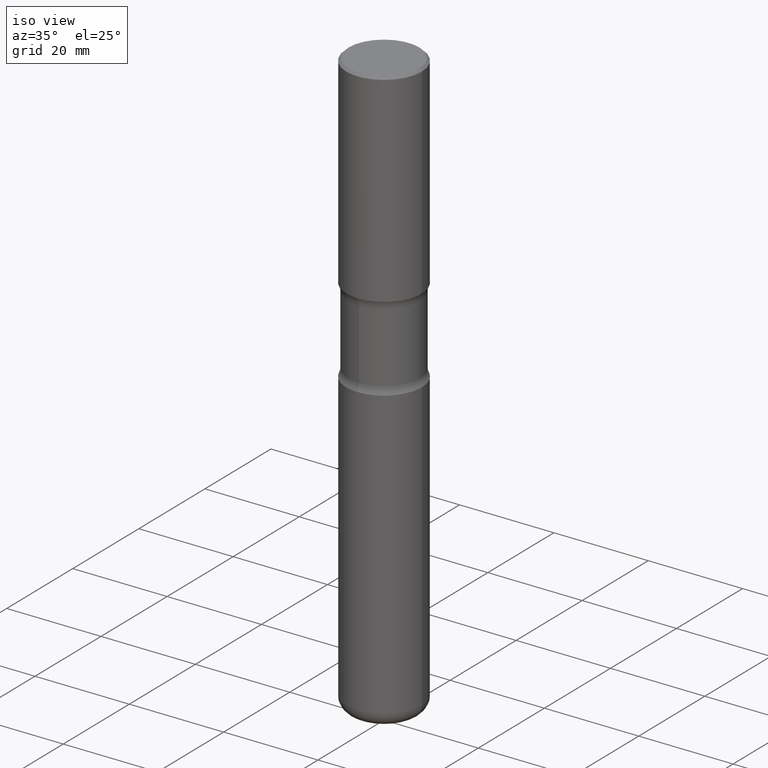
[diagram: clean part render]
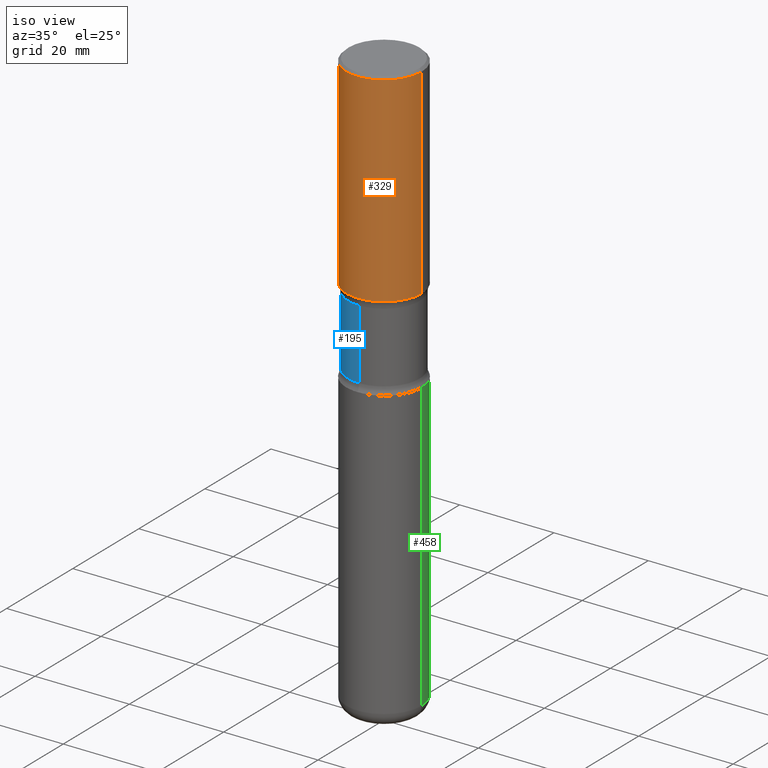
[diagram: same view with three faces highlighted in distinct colors, each labeled with its STEP entity id]
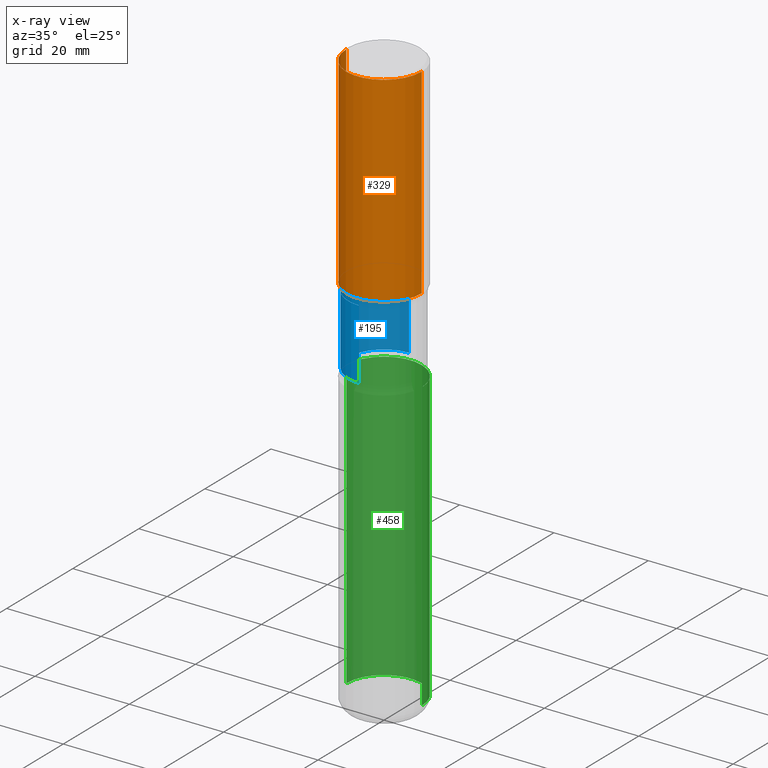
[diagram: x-ray of the same camera — body ghosted, the three highlighted faces saturated]
A machine part, iso view with three faces highlighted in distinct colors.
The next image is the same camera in x-ray (body ghosted, the three faces saturated) — at least one of them is partly hidden behind the body in this view.
Their STEP definitions:

[orange] entity #329 — the highlighted cylindrical surface (partial cylindrical patch) has radius 7.9997 mm, axis along (-0, 0, 1).
#3 = CYLINDRICAL_SURFACE ( 'NONE', #406, 0.3149500000000002853 ) ;
#18 = VERTEX_POINT ( 'NONE', #352 ) ;
#20 = DIRECTION ( 'NONE',  ( 1.000000000000000000, -6.982962677686267499E-15, 4.876176775795936353E-29 ) ) ;
#49 = ORIENTED_EDGE ( 'NONE', *, *, #256, .T. ) ;
#66 = DIRECTION ( 'NONE',  ( -2.445468806185136597E-29, 3.491481338843145583E-15, 1.000000000000000000 ) ) ;
#67 = CARTESIAN_POINT ( 'NONE',  ( 0.3149500000000003408, -8.110362001998734458E-15, -1.692999999999998950 ) ) ;
#71 = DIRECTION ( 'NONE',  ( -2.445468806185136877E-29, 3.491481338843145188E-15, 1.000000000000000000 ) ) ;
#75 = VERTEX_POINT ( 'NONE', #466 ) ;
#120 = VERTEX_POINT ( 'NONE', #67 ) ;
#138 = CIRCLE ( 'NONE', #247, 0.3149500000000003408 ) ;
#139 = DIRECTION ( 'NONE',  ( -2.445468806185136597E-29, 3.491481338843145583E-15, 1.000000000000000000 ) ) ;
#153 = EDGE_CURVE ( 'NONE', #18, #314, #248, .T. ) ;
#163 = CARTESIAN_POINT ( 'NONE',  ( 0.000000000000000000, 0.000000000000000000, 0.000000000000000000 ) ) ;
#172 = DIRECTION ( 'NONE',  ( -2.445468806185136877E-29, 3.491481338843145188E-15, 1.000000000000000000 ) ) ;
#180 = ORIENTED_EDGE ( 'NONE', *, *, #515, .F. ) ;
#219 = CARTESIAN_POINT ( 'NONE',  ( 4.140178688871433779E-29, -5.911077906661441431E-15, -1.692999999999998950 ) ) ;
#232 = AXIS2_PLACEMENT_3D ( 'NONE', #483, #66, #437 ) ;
#247 = AXIS2_PLACEMENT_3D ( 'NONE', #219, #139, #309 ) ;
#248 = LINE ( 'NONE', #456, #353 ) ;
#256 = EDGE_CURVE ( 'NONE', #120, #75, #438, .T. ) ;
#273 = EDGE_CURVE ( 'NONE', #18, #120, #138, .T. ) ;
#297 = ORIENTED_EDGE ( 'NONE', *, *, #273, .T. ) ;
#302 = ORIENTED_EDGE ( 'NONE', *, *, #153, .F. ) ;
#309 = DIRECTION ( 'NONE',  ( 1.000000000000000000, -6.982962677686268288E-15, 0.000000000000000000 ) ) ;
#313 = CARTESIAN_POINT ( 'NONE',  ( -0.3149500000000001743, 2.129454468560427756E-15, -0.02000000000000006981 ) ) ;
#314 = VERTEX_POINT ( 'NONE', #313 ) ;
#329 = ADVANCED_FACE ( 'NONE', ( #397 ), #3, .T. ) ;
#352 = CARTESIAN_POINT ( 'NONE',  ( -0.3149500000000003408, -7.525994204427138162E-16, -1.692999999999998950 ) ) ;
#353 = VECTOR ( 'NONE', #71, 39.37007874015748143 ) ;
#360 = EDGE_LOOP ( 'NONE', ( #302, #297, #49, #180 ) ) ;
#370 = VECTOR ( 'NONE', #172, 39.37007874015748143 ) ;
#397 = FACE_OUTER_BOUND ( 'NONE', #360, .T. ) ;
#406 = AXIS2_PLACEMENT_3D ( 'NONE', #163, #446, #20 ) ;
#437 = DIRECTION ( 'NONE',  ( 1.000000000000000000, -6.982962677686265922E-15, 0.000000000000000000 ) ) ;
#438 = LINE ( 'NONE', #510, #370 ) ;
#446 = DIRECTION ( 'NONE',  ( -2.445468806185136597E-29, 3.491481338843145583E-15, 1.000000000000000000 ) ) ;
#456 = CARTESIAN_POINT ( 'NONE',  ( -0.3149500000000002853, 2.237854346276437562E-15, -1.549218606675783797E-29 ) ) ;
#466 = CARTESIAN_POINT ( 'NONE',  ( 0.3149500000000001743, -2.230543471175008239E-15, -0.02000000000000006981 ) ) ;
#471 = CIRCLE ( 'NONE', #232, 0.3149500000000001743 ) ;
#483 = CARTESIAN_POINT ( 'NONE',  ( 4.890937612370289799E-31, -6.982962677686315028E-17, -0.02000000000000006981 ) ) ;
#510 = CARTESIAN_POINT ( 'NONE',  ( 0.3149500000000002853, -2.199284095337291843E-15, 1.535751875536931531E-29 ) ) ;
#515 = EDGE_CURVE ( 'NONE', #314, #75, #471, .T. ) ;

[blue] entity #195 — the highlighted cylindrical surface (partial cylindrical patch) has radius 7.5819 mm, axis along (0, -0, -1).
#9 = CYLINDRICAL_SURFACE ( 'NONE', #189, 0.2984999999999999876 ) ;
#21 = CIRCLE ( 'NONE', #217, 0.2984999999999999876 ) ;
#29 = CARTESIAN_POINT ( 'NONE',  ( 2.084414359289392801E-15, 0.2984999999999937703, -1.754983042035705765 ) ) ;
#31 = EDGE_CURVE ( 'NONE', #148, #131, #298, .T. ) ;
#34 = CARTESIAN_POINT ( 'NONE',  ( 4.261159589292944874E-29, -6.171306750507024849E-15, -1.754983042035704655 ) ) ;
#40 = EDGE_CURVE ( 'NONE', #169, #558, #426, .T. ) ;
#55 = ORIENTED_EDGE ( 'NONE', *, *, #76, .T. ) ;
#76 = EDGE_CURVE ( 'NONE', #169, #148, #21, .T. ) ;
#79 = CARTESIAN_POINT ( 'NONE',  ( -2.047858652334680349E-15, -0.2985000000000169740, -4.921299999999997787 ) ) ;
#86 = DIRECTION ( 'NONE',  ( 6.982962677686265922E-15, 1.000000000000000000, -3.660767830705880744E-15 ) ) ;
#102 = EDGE_CURVE ( 'NONE', #558, #131, #519, .T. ) ;
#128 = ORIENTED_EDGE ( 'NONE', *, *, #40, .F. ) ;
#131 = VERTEX_POINT ( 'NONE', #156 ) ;
#134 = CARTESIAN_POINT ( 'NONE',  ( 1.215411308950934395E-28, -1.701188661324475001E-14, -4.921299999999998676 ) ) ;
#137 = DIRECTION ( 'NONE',  ( 2.492786920893409468E-29, -3.423719105401062515E-15, -1.000000000000000000 ) ) ;
#148 = VERTEX_POINT ( 'NONE', #29 ) ;
#149 = CARTESIAN_POINT ( 'NONE',  ( 5.718527368430429032E-29, -8.172929058137173834E-15, -2.339616957964294031 ) ) ;
#154 = CARTESIAN_POINT ( 'NONE',  ( -2.104286248366415800E-15, -0.2985000000000081477, -2.339616957964292698 ) ) ;
#156 = CARTESIAN_POINT ( 'NONE',  ( 2.084414359289407790E-15, 0.2984999999999918274, -2.339616957964294919 ) ) ;
#169 = VERTEX_POINT ( 'NONE', #379 ) ;
#187 = AXIS2_PLACEMENT_3D ( 'NONE', #149, #319, #226 ) ;
#189 = AXIS2_PLACEMENT_3D ( 'NONE', #134, #435, #258 ) ;
#195 = ADVANCED_FACE ( 'NONE', ( #427 ), #9, .T. ) ;
#204 = VECTOR ( 'NONE', #507, 39.37007874015748143 ) ;
#210 = DIRECTION ( 'NONE',  ( 2.492786920893409468E-29, -3.423719105401062515E-15, -1.000000000000000000 ) ) ;
#217 = AXIS2_PLACEMENT_3D ( 'NONE', #34, #210, #86 ) ;
#226 = DIRECTION ( 'NONE',  ( 6.982962677686266711E-15, 1.000000000000000000, -3.660767830705880744E-15 ) ) ;
#258 = DIRECTION ( 'NONE',  ( 6.982962677686265922E-15, 1.000000000000000000, -3.660767830705880744E-15 ) ) ;
#298 = LINE ( 'NONE', #505, #388 ) ;
#319 = DIRECTION ( 'NONE',  ( 2.492786920893409468E-29, -3.423719105401062515E-15, -1.000000000000000000 ) ) ;
#379 = CARTESIAN_POINT ( 'NONE',  ( -2.104286248366431972E-15, -0.2985000000000062048, -1.754983042035703544 ) ) ;
#388 = VECTOR ( 'NONE', #137, 39.37007874015748143 ) ;
#414 = EDGE_LOOP ( 'NONE', ( #128, #55, #557, #428 ) ) ;
#426 = LINE ( 'NONE', #79, #204 ) ;
#427 = FACE_OUTER_BOUND ( 'NONE', #414, .T. ) ;
#428 = ORIENTED_EDGE ( 'NONE', *, *, #102, .F. ) ;
#435 = DIRECTION ( 'NONE',  ( 2.492786920893409468E-29, -3.423719105401062515E-15, -1.000000000000000000 ) ) ;
#505 = CARTESIAN_POINT ( 'NONE',  ( 2.084414359289471687E-15, 0.2984999999999829456, -4.921299999999999564 ) ) ;
#507 = DIRECTION ( 'NONE',  ( 2.492786920893409468E-29, -3.423719105401062515E-15, -1.000000000000000000 ) ) ;
#519 = CIRCLE ( 'NONE', #187, 0.2984999999999999876 ) ;
#557 = ORIENTED_EDGE ( 'NONE', *, *, #31, .T. ) ;
#558 = VERTEX_POINT ( 'NONE', #154 ) ;

[green] entity #458 — the highlighted cylindrical surface (partial cylindrical patch) has radius 7.9997 mm, axis along (-0, 0, 1).
#26 = CARTESIAN_POINT ( 'NONE',  ( 0.3149500000000002853, -2.199284095337291843E-15, 1.535751875536931531E-29 ) ) ;
#27 = DIRECTION ( 'NONE',  ( -2.445468806185136877E-29, 3.491481338843145188E-15, 1.000000000000000000 ) ) ;
#70 = CARTESIAN_POINT ( 'NONE',  ( 0.000000000000000000, 0.000000000000000000, 0.000000000000000000 ) ) ;
#100 = CIRCLE ( 'NONE', #412, 0.3149500000000002298 ) ;
#103 = CARTESIAN_POINT ( 'NONE',  ( 1.174632031674906636E-28, -1.677063231486527962E-14, -4.803299999999999237 ) ) ;
#109 = VECTOR ( 'NONE', #240, 39.37007874015748143 ) ;
#112 = DIRECTION ( 'NONE',  ( 1.000000000000000000, -6.982962677686268288E-15, 0.000000000000000000 ) ) ;
#115 = CYLINDRICAL_SURFACE ( 'NONE', #260, 0.3149500000000002853 ) ;
#121 = EDGE_CURVE ( 'NONE', #382, #266, #376, .T. ) ;
#136 = LINE ( 'NONE', #191, #495 ) ;
#142 = ORIENTED_EDGE ( 'NONE', *, *, #121, .T. ) ;
#147 = DIRECTION ( 'NONE',  ( 1.000000000000000000, -6.982962677686264344E-15, 0.000000000000000000 ) ) ;
#152 = DIRECTION ( 'NONE',  ( -2.445468806185136597E-29, 3.491481338843145583E-15, 1.000000000000000000 ) ) ;
#165 = EDGE_CURVE ( 'NONE', #382, #289, #203, .T. ) ;
#178 = CARTESIAN_POINT ( 'NONE',  ( -0.3149500000000002298, -1.034003260283904930E-14, -2.401599999999999291 ) ) ;
#184 = ORIENTED_EDGE ( 'NONE', *, *, #481, .F. ) ;
#191 = CARTESIAN_POINT ( 'NONE',  ( -0.3149500000000002853, 2.237854346276437562E-15, -1.549218606675783797E-29 ) ) ;
#203 = LINE ( 'NONE', #26, #109 ) ;
#240 = DIRECTION ( 'NONE',  ( -2.445468806185136877E-29, 3.491481338843145188E-15, 1.000000000000000000 ) ) ;
#260 = AXIS2_PLACEMENT_3D ( 'NONE', #70, #301, #499 ) ;
#266 = VERTEX_POINT ( 'NONE', #343 ) ;
#274 = AXIS2_PLACEMENT_3D ( 'NONE', #103, #152, #112 ) ;
#289 = VERTEX_POINT ( 'NONE', #300 ) ;
#300 = CARTESIAN_POINT ( 'NONE',  ( 0.3149500000000002298, -1.058442567870298713E-14, -2.401599999999999291 ) ) ;
#301 = DIRECTION ( 'NONE',  ( -2.445468806185136597E-29, 3.491481338843145583E-15, 1.000000000000000000 ) ) ;
#343 = CARTESIAN_POINT ( 'NONE',  ( -0.3149500000000003963, -1.453277796858884048E-14, -4.803299999999999237 ) ) ;
#365 = EDGE_LOOP ( 'NONE', ( #142, #381, #184, #432 ) ) ;
#376 = CIRCLE ( 'NONE', #274, 0.3149500000000003408 ) ;
#381 = ORIENTED_EDGE ( 'NONE', *, *, #396, .T. ) ;
#382 = VERTEX_POINT ( 'NONE', #442 ) ;
#396 = EDGE_CURVE ( 'NONE', #266, #525, #136, .T. ) ;
#412 = AXIS2_PLACEMENT_3D ( 'NONE', #517, #475, #147 ) ;
#432 = ORIENTED_EDGE ( 'NONE', *, *, #165, .F. ) ;
#442 = CARTESIAN_POINT ( 'NONE',  ( 0.3149500000000003963, -1.896991641020257106E-14, -4.803299999999999237 ) ) ;
#458 = ADVANCED_FACE ( 'NONE', ( #489 ), #115, .T. ) ;
#475 = DIRECTION ( 'NONE',  ( -2.445468806185136597E-29, 3.491481338843145583E-15, 1.000000000000000000 ) ) ;
#481 = EDGE_CURVE ( 'NONE', #289, #525, #100, .T. ) ;
#489 = FACE_OUTER_BOUND ( 'NONE', #365, .T. ) ;
#495 = VECTOR ( 'NONE', #27, 39.37007874015748143 ) ;
#499 = DIRECTION ( 'NONE',  ( 1.000000000000000000, -6.982962677686267499E-15, 4.876176775795936353E-29 ) ) ;
#517 = CARTESIAN_POINT ( 'NONE',  ( 5.873037884934222106E-29, -8.385141583365695685E-15, -2.401599999999999291 ) ) ;
#525 = VERTEX_POINT ( 'NONE', #178 ) ;